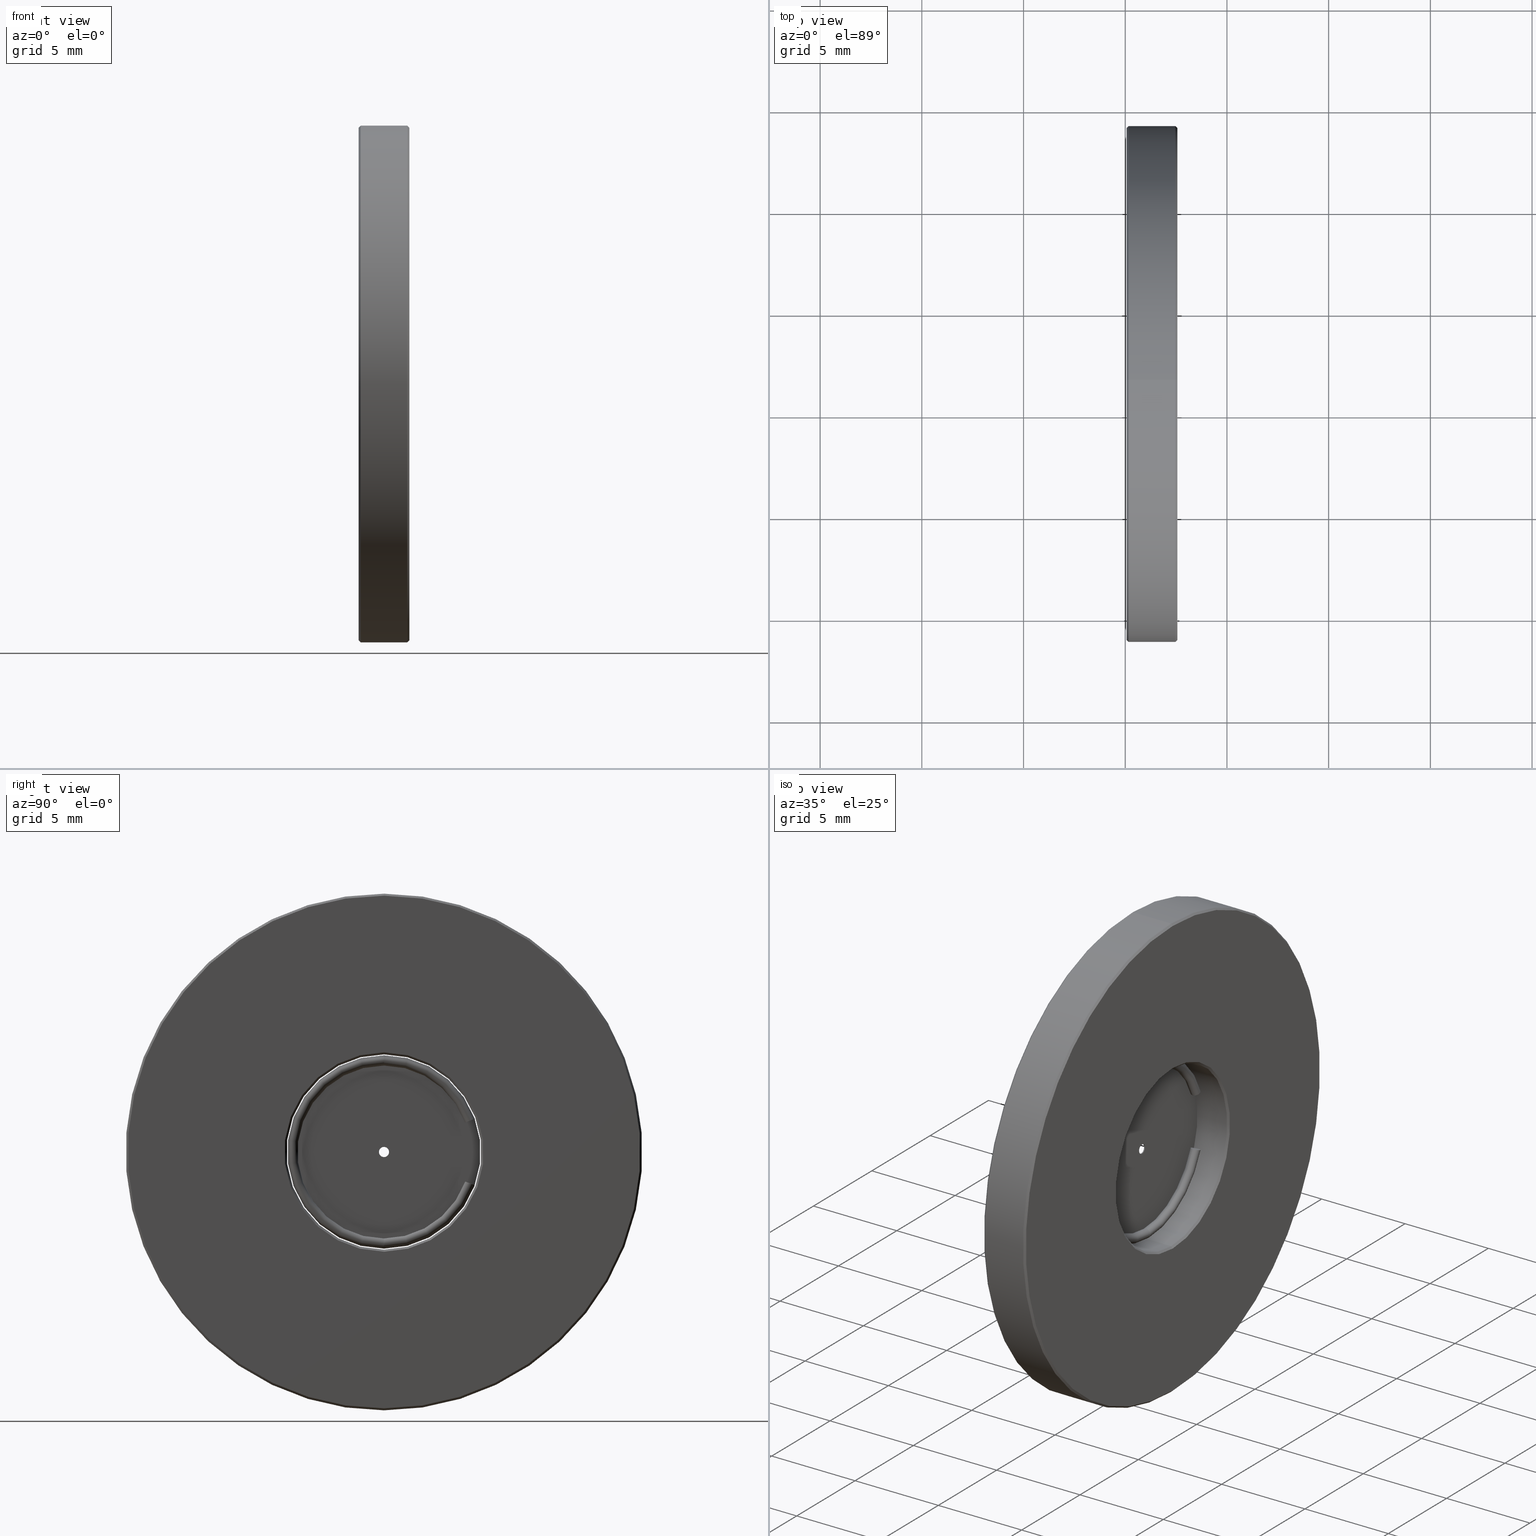
[diagram: canonical four-view strip — front | top / right | iso, engineering-drawing reading convention]
A machine part, canonical four-view strip (front | top / right | iso — engineering-drawing reading convention). The complete STEP part file that produces these views, byte-faithful:
ISO-10303-21;
HEADER;
FILE_DESCRIPTION (( 'STEP AP203' ),
    '1' );
FILE_NAME ('1.5.3.35_ZXO-1.0-500_�������500um��ֱ��25.4��1.0Ӣ�磩.STEP',
    '2021-07-27T01:09:41',
    ( 'China' ),
    ( 'Home' ),
    'SwSTEP 2.0',
    'SolidWorks 2018',
    '' );
FILE_SCHEMA (( 'CONFIG_CONTROL_DESIGN' ));
ENDSEC;

DATA;
#1 = VECTOR ( 'NONE', #816, 1000.000000000000000 ) ;
#2 = DIRECTION ( 'NONE',  ( -1.000000000000000000, -0.0000000000000000000, -0.0000000000000000000 ) ) ;
#3 = VERTEX_POINT ( 'NONE', #703 ) ;
#4 = ORIENTED_EDGE ( 'NONE', *, *, #696, .F. ) ;
#5 = DIRECTION ( 'NONE',  ( 0.0000000000000000000, 0.0000000000000000000, -1.000000000000000000 ) ) ;
#6 = CARTESIAN_POINT ( 'NONE',  ( -4.034863851253229328, 5.430452479329598070, 23.94641439060304933 ) ) ;
#7 = CARTESIAN_POINT ( 'NONE',  ( -2.434863851253203038, 1.436758841085141070, 20.50000000000000000 ) ) ;
#8 = EDGE_CURVE ( 'NONE', #546, #64, #542, .T. ) ;
#9 = DIRECTION ( 'NONE',  ( 0.0000000000000000000, 0.0000000000000000000, -1.000000000000000000 ) ) ;
#10 = PERSON ( 'δָ��', 'δָ��', 'δָ��', ('δָ��'), ('δָ��'), ('δָ��') ) ;
#11 = DIRECTION ( 'NONE',  ( -1.000000000000000000, -0.0000000000000000000, -0.0000000000000000000 ) ) ;
#12 = TOROIDAL_SURFACE ( 'NONE', #258, 4.500000000000001776, 0.2499999999999994726 ) ;
#13 = CYLINDRICAL_SURFACE ( 'NONE', #270, 0.2500000000000002220 ) ;
#14 = DIRECTION ( 'NONE',  ( 2.921639538487253472E-15, 1.000000000000000000, 0.0000000000000000000 ) ) ;
#15 = AXIS2_PLACEMENT_3D ( 'NONE', #592, #320, #5 ) ;
#16 = DIRECTION ( 'NONE',  ( 0.0000000000000000000, 0.0000000000000000000, -1.000000000000000000 ) ) ;
#17 = DIRECTION ( 'NONE',  ( -2.997602166400238009E-15, -1.000000000000000000, 6.581526990068181500E-11 ) ) ;
#18 = AXIS2_PLACEMENT_3D ( 'NONE', #730, #538, #664 ) ;
#19 = DIRECTION ( 'NONE',  ( 0.0000000000000000000, 0.0000000000000000000, 1.000000000000000000 ) ) ;
#20 = CC_DESIGN_APPROVAL ( #438, ( #300 ) ) ;
#21 = DIRECTION ( 'NONE',  ( 0.0000000000000000000, 0.0000000000000000000, -1.000000000000000000 ) ) ;
#22 = DIRECTION ( 'NONE',  ( 1.000000000000000000, 0.0000000000000000000, 0.0000000000000000000 ) ) ;
#23 = LINE ( 'NONE', #71, #489 ) ;
#24 = EDGE_LOOP ( 'NONE', ( #197, #659, #762, #625 ) ) ;
#25 = CARTESIAN_POINT ( 'NONE',  ( -4.034863851253245315, 1.436758841381310825, 29.89999999999998437 ) ) ;
#26 = ORIENTED_EDGE ( 'NONE', *, *, #39, .T. ) ;
#27 = CARTESIAN_POINT ( 'NONE',  ( -4.934863851253203926, 1.436758841085141070, 29.19999999999999929 ) ) ;
#28 = ORIENTED_EDGE ( 'NONE', *, *, #112, .T. ) ;
#29 = AXIS2_PLACEMENT_3D ( 'NONE', #835, #515, #504 ) ;
#30 = DIRECTION ( 'NONE',  ( -1.332267629506340790E-15, -6.581527172670668233E-11, -1.000000000000000000 ) ) ;
#31 =( NAMED_UNIT ( * ) PLANE_ANGLE_UNIT ( ) SI_UNIT ( $, .RADIAN. ) );
#32 = CARTESIAN_POINT ( 'NONE',  ( -4.034863851253245315, 1.436758841381310825, 29.89999999999998437 ) ) ;
#33 = DIRECTION ( 'NONE',  ( 0.0000000000000000000, 0.0000000000000000000, -1.000000000000000000 ) ) ;
#34 = LOCAL_TIME ( 9, 9, 41.00000000000000000, #296 ) ;
#35 = DIRECTION ( 'NONE',  ( 1.000000000000000000, 0.0000000000000000000, 0.0000000000000000000 ) ) ;
#36 = TOROIDAL_SURFACE ( 'NONE', #327, 4.500000000000001776, 0.2499999999999994726 ) ;
#37 = DIRECTION ( 'NONE',  ( -1.054662389422715826E-17, 0.3420201432638126371, -0.9396926208084220855 ) ) ;
#38 = VERTEX_POINT ( 'NONE', #180 ) ;
#39 = EDGE_CURVE ( 'NONE', #520, #637, #290, .T. ) ;
#40 = DIRECTION ( 'NONE',  ( -1.000000000000000000, 0.0000000000000000000, 0.0000000000000000000 ) ) ;
#41 = DIRECTION ( 'NONE',  ( 1.000000000000000000, 0.0000000000000000000, 0.0000000000000000000 ) ) ;
#42 = AXIS2_PLACEMENT_3D ( 'NONE', #701, #313, #67 ) ;
#43 = FACE_OUTER_BOUND ( 'NONE', #355, .T. ) ;
#44 = DESIGN_CONTEXT ( 'detailed design', #215, 'design' ) ;
#45 = ORIENTED_EDGE ( 'NONE', *, *, #817, .T. ) ;
#46 = PLANE ( 'NONE',  #405 ) ;
#47 = CARTESIAN_POINT ( 'NONE',  ( -18.51131405003491537, 1.436758841085141070, 20.60000000000000142 ) ) ;
#48 = CALENDAR_DATE ( 2021, 27, 7 ) ;
#49 = DIRECTION ( 'NONE',  ( 1.000000000000000000, 0.0000000000000000000, 0.0000000000000000000 ) ) ;
#50 = EDGE_CURVE ( 'NONE', #637, #97, #23, .T. ) ;
#51 = ADVANCED_FACE ( 'NONE', ( #319, #455 ), #136, .F. ) ;
#52 = VECTOR ( 'NONE', #690, 1000.000000000000114 ) ;
#53 = AXIS2_PLACEMENT_3D ( 'NONE', #589, #191, #389 ) ;
#54 = VERTEX_POINT ( 'NONE', #128 ) ;
#55 = CARTESIAN_POINT ( 'NONE',  ( -4.934863851253203926, 1.436758841085141514, 21.59999999999999787 ) ) ;
#56 = ORIENTED_EDGE ( 'NONE', *, *, #470, .T. ) ;
#57 = DIRECTION ( 'NONE',  ( 0.0000000000000000000, 0.0000000000000000000, -1.000000000000000000 ) ) ;
#58 = CARTESIAN_POINT ( 'NONE',  ( -4.934863851253203926, 1.436758841085141070, 25.39999999999999858 ) ) ;
#59 = AXIS2_PLACEMENT_3D ( 'NONE', #401, #465, #89 ) ;
#60 = CIRCLE ( 'NONE', #238, 0.2500000000000000000 ) ;
#61 = CC_DESIGN_APPROVAL ( #622, ( #774 ) ) ;
#62 = VERTEX_POINT ( 'NONE', #77 ) ;
#63 = ADVANCED_FACE ( 'NONE', ( #124 ), #204, .F. ) ;
#64 = VERTEX_POINT ( 'NONE', #328 ) ;
#65 = ORIENTED_EDGE ( 'NONE', *, *, #198, .F. ) ;
#66 = EDGE_CURVE ( 'NONE', #815, #375, #813, .T. ) ;
#67 = DIRECTION ( 'NONE',  ( 3.469446951953611033E-15, -0.9396926207634005435, 0.3420201433875083574 ) ) ;
#68 = AXIS2_PLACEMENT_3D ( 'NONE', #395, #661, #593 ) ;
#69 = DIRECTION ( 'NONE',  ( 3.469446951953614189E-15, -0.9396926208084209753, -0.3420201432638159122 ) ) ;
#70 = PLANE ( 'NONE',  #222 ) ;
#71 = CARTESIAN_POINT ( 'NONE',  ( -4.834863851253204281, 1.436758841085141070, 12.69999999999999929 ) ) ;
#72 = VECTOR ( 'NONE', #801, 1000.000000000000000 ) ;
#73 = CIRCLE ( 'NONE', #509, 0.2500000000000002220 ) ;
#74 = DIRECTION ( 'NONE',  ( 1.000000000000000000, 0.0000000000000000000, 0.0000000000000000000 ) ) ;
#75 = ORIENTED_EDGE ( 'NONE', *, *, #8, .T. ) ;
#76 = EDGE_LOOP ( 'NONE', ( #773, #397, #56, #436 ) ) ;
#77 = CARTESIAN_POINT ( 'NONE',  ( -4.034863851253225775, 5.900298789925161103, 27.02459568050305094 ) ) ;
#78 = DIRECTION ( 'NONE',  ( 3.599659071901011181E-15, -0.9396926208084229737, -0.3420201432638104166 ) ) ;
#79 = EDGE_CURVE ( 'NONE', #322, #257, #228, .T. ) ;
#80 = CARTESIAN_POINT ( 'NONE',  ( -4.934863851253203926, 1.436758841085141070, 25.39999999999999858 ) ) ;
#81 = LOCAL_TIME ( 9, 9, 41.00000000000000000, #93 ) ;
#82 = LINE ( 'NONE', #523, #425 ) ;
#83 = CARTESIAN_POINT ( 'NONE',  ( -4.284863851253205347, 1.436758841085140181, 25.39999999999999858 ) ) ;
#84 = CIRCLE ( 'NONE', #578, 3.700000000000001954 ) ;
#85 = OPEN_SHELL ( 'NONE', ( #830, #377, #302, #185, #691, #506, #826, #758 ) ) ;
#86 = DIRECTION ( 'NONE',  ( -1.000000000000000000, -0.0000000000000000000, -0.0000000000000000000 ) ) ;
#87 = VERTEX_POINT ( 'NONE', #261 ) ;
#88 = CARTESIAN_POINT ( 'NONE',  ( -4.034863851253239986, 1.436758841085141514, 25.39999999999998437 ) ) ;
#89 = DIRECTION ( 'NONE',  ( 2.921639538487253472E-15, 1.000000000000000000, 0.0000000000000000000 ) ) ;
#90 = DIRECTION ( 'NONE',  ( -1.000000000000000000, 0.0000000000000000000, -0.0000000000000000000 ) ) ;
#91 = DIRECTION ( 'NONE',  ( 1.000000000000000000, -2.997602166487921476E-15, -1.332267629309052594E-15 ) ) ;
#92 = LOCAL_TIME ( 9, 9, 41.00000000000000000, #712 ) ;
#93 = COORDINATED_UNIVERSAL_TIME_OFFSET ( 8, 0, .AHEAD. ) ;
#94 = APPLICATION_PROTOCOL_DEFINITION ( 'international standard', 'config_control_design', 1994, #602 ) ;
#95 = LINE ( 'NONE', #422, #715 ) ;
#96 = EDGE_LOOP ( 'NONE', ( #771, #45, #780, #184 ) ) ;
#97 = VERTEX_POINT ( 'NONE', #195 ) ;
#98 = EDGE_CURVE ( 'NONE', #132, #3, #562, .T. ) ;
#99 = APPROVAL_ROLE ( '' ) ;
#100 = EDGE_LOOP ( 'NONE', ( #503, #280, #186, #588 ) ) ;
#101 = AXIS2_PLACEMENT_3D ( 'NONE', #145, #599, #342 ) ;
#102 = CARTESIAN_POINT ( 'NONE',  ( -4.034863851253246203, 1.436758840772518919, 20.64999999999998437 ) ) ;
#103 = DIRECTION ( 'NONE',  ( -1.000000000000000000, 0.0000000000000000000, -0.0000000000000000000 ) ) ;
#104 = UNCERTAINTY_MEASURE_WITH_UNIT (LENGTH_MEASURE( 1.000000000000000082E-05 ), #527, 'distance_accuracy_value', 'NONE');
#105 = AXIS2_PLACEMENT_3D ( 'NONE', #32, #273, #406 ) ;
#106 = CARTESIAN_POINT ( 'NONE',  ( -4.334863851253203393, 1.436758841085141070, 25.39999999999999858 ) ) ;
#107 = LINE ( 'NONE', #343, #702 ) ;
#108 = ORIENTED_EDGE ( 'NONE', *, *, #413, .T. ) ;
#109 = VERTEX_POINT ( 'NONE', #516 ) ;
#110 = AXIS2_PLACEMENT_3D ( 'NONE', #88, #275, #735 ) ;
#111 = CARTESIAN_POINT ( 'NONE',  ( -4.034863851253261302, 5.665375634520459336, 23.86090935475617059 ) ) ;
#112 = EDGE_CURVE ( 'NONE', #400, #142, #820, .T. ) ;
#113 = FACE_OUTER_BOUND ( 'NONE', #446, .T. ) ;
#114 = DIRECTION ( 'NONE',  ( 3.061276722312011406E-15, 1.000000000000000000, 0.0000000000000000000 ) ) ;
#115 = ORIENTED_EDGE ( 'NONE', *, *, #630, .T. ) ;
#116 = ORIENTED_EDGE ( 'NONE', *, *, #721, .F. ) ;
#117 = ORIENTED_EDGE ( 'NONE', *, *, #421, .F. ) ;
#118 = AXIS2_PLACEMENT_3D ( 'NONE', #431, #119, #621 ) ;
#119 = DIRECTION ( 'NONE',  ( -2.997602166400238009E-15, -1.000000000000000000, 6.581526990068181500E-11 ) ) ;
#120 = ADVANCED_FACE ( 'NONE', ( #43 ), #362, .T. ) ;
#121 = EDGE_CURVE ( 'NONE', #597, #534, #396, .T. ) ;
#122 = CIRCLE ( 'NONE', #464, 4.250000000000001776 ) ;
#123 = ADVANCED_FACE ( 'NONE', ( #385 ), #616, .T. ) ;
#124 = FACE_OUTER_BOUND ( 'NONE', #364, .T. ) ;
#125 = ORIENTED_EDGE ( 'NONE', *, *, #555, .F. ) ;
#126 = SHELL_BASED_SURFACE_MODEL ( 'NONE', ( #564, #785, #85 ) );
#127 = DIRECTION ( 'NONE',  ( 0.0000000000000000000, 0.0000000000000000000, 1.000000000000000000 ) ) ;
#128 = CARTESIAN_POINT ( 'NONE',  ( -4.284863851253205347, 1.436758841085140181, 30.14999999999999858 ) ) ;
#129 = CARTESIAN_POINT ( 'NONE',  ( -4.034863851253237321, 1.436758841364856876, 29.64999999999998437 ) ) ;
#130 = AXIS2_PLACEMENT_3D ( 'NONE', #447, #454, #587 ) ;
#131 = CIRCLE ( 'NONE', #29, 12.69999999999999929 ) ;
#132 = VERTEX_POINT ( 'NONE', #513 ) ;
#133 = VERTEX_POINT ( 'NONE', #384 ) ;
#134 = EDGE_CURVE ( 'NONE', #62, #167, #60, .T. ) ;
#135 = CARTESIAN_POINT ( 'NONE',  ( -4.334863851253203393, 1.436758841085141070, 25.39999999999999858 ) ) ;
#136 = PLANE ( 'NONE',  #583 ) ;
#137 = DIRECTION ( 'NONE',  ( 0.7071067811865414665, 0.0000000000000000000, -0.7071067811865536790 ) ) ;
#138 = LOCAL_TIME ( 9, 9, 41.00000000000000000, #665 ) ;
#139 = FACE_OUTER_BOUND ( 'NONE', #366, .T. ) ;
#140 = ORIENTED_EDGE ( 'NONE', *, *, #721, .T. ) ;
#141 = CARTESIAN_POINT ( 'NONE',  ( -4.284863851253205347, 1.436758841085140181, 25.14999999999999858 ) ) ;
#142 = VERTEX_POINT ( 'NONE', #641 ) ;
#143 = PRODUCT_RELATED_PRODUCT_CATEGORY ( 'detail', '', ( #526 ) ) ;
#144 = CARTESIAN_POINT ( 'NONE',  ( -2.434863851253203482, 1.436758841085141070, 25.39999999999999858 ) ) ;
#145 = CARTESIAN_POINT ( 'NONE',  ( -4.334863851253204281, 1.436758841085140181, 25.39999999999999858 ) ) ;
#146 = APPROVAL_PERSON_ORGANIZATION ( #370, #586, #212 ) ;
#147 = CARTESIAN_POINT ( 'NONE',  ( -4.334863851253203393, 1.436758841085141070, 21.69999999999999574 ) ) ;
#148 = ORIENTED_EDGE ( 'NONE', *, *, #289, .F. ) ;
#149 = DIRECTION ( 'NONE',  ( 1.000000000000000000, -2.997602166487921476E-15, -1.332267629309052594E-15 ) ) ;
#150 = ORIENTED_EDGE ( 'NONE', *, *, #775, .F. ) ;
#151 = CARTESIAN_POINT ( 'NONE',  ( -4.334863851253204281, 1.436758841085140181, 25.39999999999999858 ) ) ;
#152 = ORIENTED_EDGE ( 'NONE', *, *, #736, .F. ) ;
#153 = DIRECTION ( 'NONE',  ( -0.7071067811865414665, 8.659560562355008046E-17, -0.7071067811865536790 ) ) ;
#154 = EDGE_CURVE ( 'NONE', #688, #310, #748, .T. ) ;
#155 = DIRECTION ( 'NONE',  ( 3.469446951953614189E-15, -0.9396926208084209753, -0.3420201432638159122 ) ) ;
#156 = DIRECTION ( 'NONE',  ( 1.000000000000000000, 0.0000000000000000000, 0.0000000000000000000 ) ) ;
#157 = PERSON_AND_ORGANIZATION ( #10, #558 ) ;
#158 = CONICAL_SURFACE ( 'NONE', #336, 4.899999999999997691, 0.7853981633974439491 ) ;
#159 = CIRCLE ( 'NONE', #650, 3.800000000000001155 ) ;
#160 = ORIENTED_EDGE ( 'NONE', *, *, #368, .F. ) ;
#161 = EDGE_CURVE ( 'NONE', #688, #618, #716, .T. ) ;
#162 = DIRECTION ( 'NONE',  ( 0.0000000000000000000, 0.0000000000000000000, -1.000000000000000000 ) ) ;
#163 = CARTESIAN_POINT ( 'NONE',  ( -2.534863851253199574, 1.436758841085141070, 38.09999999999999432 ) ) ;
#164 = AXIS2_PLACEMENT_3D ( 'NONE', #708, #577, #253 ) ;
#165 = FACE_OUTER_BOUND ( 'NONE', #100, .T. ) ;
#166 = ORIENTED_EDGE ( 'NONE', *, *, #232, .F. ) ;
#167 = VERTEX_POINT ( 'NONE', #474 ) ;
#168 = AXIS2_PLACEMENT_3D ( 'NONE', #797, #200, #21 ) ;
#169 = ORIENTED_EDGE ( 'NONE', *, *, #775, .T. ) ;
#170 = ADVANCED_FACE ( 'NONE', ( #725, #435 ), #207, .F. ) ;
#171 = AXIS2_PLACEMENT_3D ( 'NONE', #458, #268, #78 ) ;
#172 = CONICAL_SURFACE ( 'NONE', #68, 4.899999999999997691, 0.7853981633974439491 ) ;
#173 = LINE ( 'NONE', #639, #624 ) ;
#174 = TOROIDAL_SURFACE ( 'NONE', #692, 4.500000000000001776, 0.2499999999999994726 ) ;
#175 = VERTEX_POINT ( 'NONE', #269 ) ;
#176 = ORIENTED_EDGE ( 'NONE', *, *, #470, .F. ) ;
#177 = ADVANCED_FACE ( 'NONE', ( #550 ), #338, .F. ) ;
#178 = DIRECTION ( 'NONE',  ( 0.7071067811865414665, 8.659560562355009279E-17, 0.7071067811865536790 ) ) ;
#179 = CARTESIAN_POINT ( 'NONE',  ( -4.284863851253205347, 1.436758841085140181, 25.39999999999999858 ) ) ;
#180 = CARTESIAN_POINT ( 'NONE',  ( -2.534863851253202682, 1.436758841085141736, 30.19999999999999929 ) ) ;
#181 = CIRCLE ( 'NONE', #101, 0.2500000000000002220 ) ;
#182 = ORIENTED_EDGE ( 'NONE', *, *, #494, .T. ) ;
#183 = DIRECTION ( 'NONE',  ( 1.000000000000000000, -0.0000000000000000000, -0.0000000000000000000 ) ) ;
#184 = ORIENTED_EDGE ( 'NONE', *, *, #66, .F. ) ;
#185 = ADVANCED_FACE ( 'NONE', ( #220 ), #36, .T. ) ;
#186 = ORIENTED_EDGE ( 'NONE', *, *, #161, .T. ) ;
#187 = ORIENTED_EDGE ( 'NONE', *, *, #601, .T. ) ;
#188 = EDGE_CURVE ( 'NONE', #142, #400, #683, .T. ) ;
#189 = CARTESIAN_POINT ( 'NONE',  ( -2.434863851253203482, 1.436758841085141070, 25.39999999999999858 ) ) ;
#190 = AXIS2_PLACEMENT_3D ( 'NONE', #535, #467, #22 ) ;
#191 = DIRECTION ( 'NONE',  ( 1.000000000000000000, -2.997602166487921476E-15, -1.332267629309052594E-15 ) ) ;
#192 = DIRECTION ( 'NONE',  ( 2.305737067885818465E-15, -0.3420201433875043051, -0.9396926207634020978 ) ) ;
#193 = AXIS2_PLACEMENT_3D ( 'NONE', #718, #777, #390 ) ;
#194 = CONICAL_SURFACE ( 'NONE', #311, 3.800000000000001155, 0.7853981633974439491 ) ;
#195 = CARTESIAN_POINT ( 'NONE',  ( -4.834863851253204281, 1.436758841085141070, 12.69999999999999929 ) ) ;
#196 = LINE ( 'NONE', #213, #266 ) ;
#197 = ORIENTED_EDGE ( 'NONE', *, *, #242, .F. ) ;
#198 = EDGE_CURVE ( 'NONE', #142, #814, #196, .T. ) ;
#199 = DIRECTION ( 'NONE',  ( -1.000000000000000000, -0.0000000000000000000, -0.0000000000000000000 ) ) ;
#200 = DIRECTION ( 'NONE',  ( -1.000000000000000000, 0.0000000000000000000, -0.0000000000000000000 ) ) ;
#201 = DIRECTION ( 'NONE',  ( 0.0000000000000000000, 0.0000000000000000000, -1.000000000000000000 ) ) ;
#202 = DIRECTION ( 'NONE',  ( 1.000000000000000000, -2.997602166487921476E-15, -1.332267629309052594E-15 ) ) ;
#203 = MECHANICAL_CONTEXT ( 'NONE', #602, 'mechanical' ) ;
#204 = CYLINDRICAL_SURFACE ( 'NONE', #225, 3.700000000000001954 ) ;
#205 = AXIS2_PLACEMENT_3D ( 'NONE', #671, #277, #33 ) ;
#206 = EDGE_LOOP ( 'NONE', ( #176, #824, #553, #223 ) ) ;
#207 = PLANE ( 'NONE',  #18 ) ;
#208 = ORIENTED_EDGE ( 'NONE', *, *, #787, .F. ) ;
#209 = CARTESIAN_POINT ( 'NONE',  ( -4.034863851253261302, 5.665375634723053722, 26.93909064468709857 ) ) ;
#210 = DIRECTION ( 'NONE',  ( 1.000000000000000000, 0.0000000000000000000, 0.0000000000000000000 ) ) ;
#211 = AXIS2_PLACEMENT_3D ( 'NONE', #529, #17, #600 ) ;
#212 = APPROVAL_ROLE ( '' ) ;
#213 = CARTESIAN_POINT ( 'NONE',  ( -2.434863851253203482, 1.436758841085142402, 12.79999999999999716 ) ) ;
#214 = DATE_AND_TIME ( #380, #92 ) ;
#215 = APPLICATION_CONTEXT ( 'configuration controlled 3d designs of mechanical parts and assemblies' ) ;
#216 = CIRCLE ( 'NONE', #445, 0.2500000000000000000 ) ;
#217 = DIRECTION ( 'NONE',  ( 1.000000000000000000, -0.0000000000000000000, -0.0000000000000000000 ) ) ;
#218 = CYLINDRICAL_SURFACE ( 'NONE', #569, 12.69999999999999574 ) ;
#219 = EDGE_CURVE ( 'NONE', #618, #688, #530, .T. ) ;
#220 = FACE_OUTER_BOUND ( 'NONE', #24, .T. ) ;
#221 = APPROVAL_ROLE ( '' ) ;
#222 = AXIS2_PLACEMENT_3D ( 'NONE', #638, #568, #127 ) ;
#223 = ORIENTED_EDGE ( 'NONE', *, *, #494, .F. ) ;
#224 = CARTESIAN_POINT ( 'NONE',  ( -4.334863851253204281, 1.436758841085140181, 25.14999999999999858 ) ) ;
#225 = AXIS2_PLACEMENT_3D ( 'NONE', #449, #581, #524 ) ;
#226 = COORDINATED_UNIVERSAL_TIME_OFFSET ( 8, 0, .AHEAD. ) ;
#227 = CIRCLE ( 'NONE', #713, 4.899999999999997691 ) ;
#228 = LINE ( 'NONE', #7, #643 ) ;
#229 = DIRECTION ( 'NONE',  ( 0.0000000000000000000, 0.0000000000000000000, -1.000000000000000000 ) ) ;
#230 = ORIENTED_EDGE ( 'NONE', *, *, #410, .F. ) ;
#231 = DIRECTION ( 'NONE',  ( 1.000000000000000000, -2.997602166487921476E-15, -1.332267629309052594E-15 ) ) ;
#232 = EDGE_CURVE ( 'NONE', #133, #374, #372, .T. ) ;
#233 = ADVANCED_FACE ( 'NONE', ( #695 ), #349, .F. ) ;
#234 = CARTESIAN_POINT ( 'NONE',  ( -4.334863851253203393, 1.436758841085141736, 30.19999999999999929 ) ) ;
#235 = ORIENTED_EDGE ( 'NONE', *, *, #745, .T. ) ;
#236 = DIRECTION ( 'NONE',  ( 1.000000000000000000, -0.0000000000000000000, -0.0000000000000000000 ) ) ;
#237 = ORIENTED_EDGE ( 'NONE', *, *, #98, .T. ) ;
#238 = AXIS2_PLACEMENT_3D ( 'NONE', #521, #440, #69 ) ;
#239 = ORIENTED_EDGE ( 'NONE', *, *, #477, .T. ) ;
#240 = CARTESIAN_POINT ( 'NONE',  ( -4.834863851253204281, 1.436758841085141070, 25.39999999999999858 ) ) ;
#241 = CARTESIAN_POINT ( 'NONE',  ( -4.334863851253203393, 1.436758841085141070, 20.60000000000000142 ) ) ;
#242 = EDGE_CURVE ( 'NONE', #62, #688, #571, .T. ) ;
#243 = CIRCLE ( 'NONE', #821, 3.700000000000001954 ) ;
#244 = CIRCLE ( 'NONE', #424, 4.799999999999998934 ) ;
#245 = ORIENTED_EDGE ( 'NONE', *, *, #39, .F. ) ;
#246 = DIRECTION ( 'NONE',  ( -1.000000000000000000, -0.0000000000000000000, -0.0000000000000000000 ) ) ;
#247 = DIRECTION ( 'NONE',  ( 1.000000000000000000, 0.0000000000000000000, 0.0000000000000000000 ) ) ;
#248 = DIRECTION ( 'NONE',  ( 0.0000000000000000000, 0.0000000000000000000, -1.000000000000000000 ) ) ;
#249 = DIRECTION ( 'NONE',  ( 0.0000000000000000000, 0.0000000000000000000, -1.000000000000000000 ) ) ;
#250 = APPROVAL_PERSON_ORGANIZATION ( #157, #622, #99 ) ;
#251 = CC_DESIGN_DATE_AND_TIME_ASSIGNMENT ( #767, #335, ( #300 ) ) ;
#252 = CYLINDRICAL_SURFACE ( 'NONE', #348, 12.69999999999999574 ) ;
#253 = DIRECTION ( 'NONE',  ( 0.0000000000000000000, 0.0000000000000000000, -1.000000000000000000 ) ) ;
#254 = ORIENTED_EDGE ( 'NONE', *, *, #450, .T. ) ;
#255 = ORIENTED_EDGE ( 'NONE', *, *, #289, .T. ) ;
#256 = CARTESIAN_POINT ( 'NONE',  ( -4.934863851253203926, 1.436758841085141070, 25.39999999999999858 ) ) ;
#257 = VERTEX_POINT ( 'NONE', #334 ) ;
#258 = AXIS2_PLACEMENT_3D ( 'NONE', #346, #149, #808 ) ;
#259 = DIRECTION ( 'NONE',  ( -1.000000000000000000, 0.0000000000000000000, -0.0000000000000000000 ) ) ;
#260 = DIRECTION ( 'NONE',  ( 1.000000000000000000, 0.0000000000000000000, 0.0000000000000000000 ) ) ;
#261 = CARTESIAN_POINT ( 'NONE',  ( -4.284863851253205347, 1.436758841085140181, 25.64999999999999858 ) ) ;
#262 = PERSON_AND_ORGANIZATION ( #10, #558 ) ;
#263 = CARTESIAN_POINT ( 'NONE',  ( -4.334863851253204281, 1.436758841085140181, 25.39999999999999858 ) ) ;
#264 = AXIS2_PLACEMENT_3D ( 'NONE', #179, #318, #770 ) ;
#265 = FACE_OUTER_BOUND ( 'NONE', #706, .T. ) ;
#266 = VECTOR ( 'NONE', #153, 1000.000000000000000 ) ;
#267 = ORIENTED_EDGE ( 'NONE', *, *, #188, .F. ) ;
#268 = DIRECTION ( 'NONE',  ( -1.054662389421852547E-17, 0.3420201432638104166, -0.9396926208084229737 ) ) ;
#269 = CARTESIAN_POINT ( 'NONE',  ( -4.334863851253204281, 1.436758841085140181, 25.64999999999999858 ) ) ;
#270 = AXIS2_PLACEMENT_3D ( 'NONE', #83, #103, #751 ) ;
#271 = PERSON_AND_ORGANIZATION_ROLE ( 'creator' ) ;
#272 = CC_DESIGN_PERSON_AND_ORGANIZATION_ASSIGNMENT ( #393, #727, ( #774 ) ) ;
#273 = DIRECTION ( 'NONE',  ( 2.997602166400237614E-15, 1.000000000000000000, -6.581539236536173561E-11 ) ) ;
#274 = CARTESIAN_POINT ( 'NONE',  ( -2.434863851253203038, 1.436758841085141736, 30.29999999999999716 ) ) ;
#275 = DIRECTION ( 'NONE',  ( 1.000000000000000000, -2.997602166487921476E-15, -1.332267629309052594E-15 ) ) ;
#276 = EDGE_CURVE ( 'NONE', #534, #38, #107, .T. ) ;
#277 = DIRECTION ( 'NONE',  ( -1.000000000000000000, -0.0000000000000000000, -0.0000000000000000000 ) ) ;
#278 = ORIENTED_EDGE ( 'NONE', *, *, #50, .T. ) ;
#279 = DIRECTION ( 'NONE',  ( 0.0000000000000000000, 6.581540867855999654E-11, 1.000000000000000000 ) ) ;
#280 = ORIENTED_EDGE ( 'NONE', *, *, #242, .T. ) ;
#281 = MANIFOLD_SURFACE_SHAPE_REPRESENTATION ( '1.5.3.35_ZXO-1.0-500_�������500um��ֱ��25.4��1.0Ӣ�磩', ( #126, #190 ), #391 ) ;
#282 = PERSON_AND_ORGANIZATION_ROLE ( 'creator' ) ;
#283 = ORIENTED_EDGE ( 'NONE', *, *, #457, .F. ) ;
#284 = DIRECTION ( 'NONE',  ( 1.000000000000000000, 0.0000000000000000000, 0.0000000000000000000 ) ) ;
#285 = AXIS2_PLACEMENT_3D ( 'NONE', #398, #202, #733 ) ;
#286 = CARTESIAN_POINT ( 'NONE',  ( -4.934863851253203926, 1.436758841085141070, 25.39999999999999858 ) ) ;
#287 = CARTESIAN_POINT ( 'NONE',  ( -2.534863851253202682, 1.436758841085141070, 20.60000000000000142 ) ) ;
#288 = FACE_OUTER_BOUND ( 'NONE', #753, .T. ) ;
#289 = EDGE_CURVE ( 'NONE', #627, #310, #508, .T. ) ;
#290 = CIRCLE ( 'NONE', #549, 12.59999999999999787 ) ;
#291 = ORIENTED_EDGE ( 'NONE', *, *, #276, .F. ) ;
#292 = VERTEX_POINT ( 'NONE', #147 ) ;
#293 = CARTESIAN_POINT ( 'NONE',  ( -4.034863851253239986, 1.436758841085141514, 25.39999999999998437 ) ) ;
#294 = AXIS2_PLACEMENT_3D ( 'NONE', #295, #297, #114 ) ;
#295 = CARTESIAN_POINT ( 'NONE',  ( -4.034863851253239986, 1.436758841085141514, 25.39999999999998437 ) ) ;
#296 = COORDINATED_UNIVERSAL_TIME_OFFSET ( 8, 0, .AHEAD. ) ;
#297 = DIRECTION ( 'NONE',  ( 1.000000000000000000, -2.997602166487921476E-15, -1.332267629309052594E-15 ) ) ;
#298 = ORIENTED_EDGE ( 'NONE', *, *, #505, .F. ) ;
#299 = ORIENTED_EDGE ( 'NONE', *, *, #677, .T. ) ;
#300 = SECURITY_CLASSIFICATION ( '', '', #676 ) ;
#301 = ORIENTED_EDGE ( 'NONE', *, *, #357, .F. ) ;
#302 = ADVANCED_FACE ( 'NONE', ( #165 ), #353, .T. ) ;
#303 = EDGE_CURVE ( 'NONE', #322, #38, #244, .T. ) ;
#304 = DIRECTION ( 'NONE',  ( -1.000000000000000000, -0.0000000000000000000, -0.0000000000000000000 ) ) ;
#305 = ADVANCED_FACE ( 'NONE', ( #769 ), #13, .F. ) ;
#306 = TOROIDAL_SURFACE ( 'NONE', #749, 4.500000000000001776, 0.2499999999999994726 ) ;
#307 = CIRCLE ( 'NONE', #666, 3.800000000000001155 ) ;
#308 = VECTOR ( 'NONE', #412, 1000.000000000000114 ) ;
#309 = CARTESIAN_POINT ( 'NONE',  ( -4.934863851253203926, 1.436758841085141070, 25.39999999999999858 ) ) ;
#310 = VERTEX_POINT ( 'NONE', #102 ) ;
#311 = AXIS2_PLACEMENT_3D ( 'NONE', #309, #434, #699 ) ;
#312 = DIRECTION ( 'NONE',  ( -1.000000000000000000, -0.0000000000000000000, -0.0000000000000000000 ) ) ;
#313 = DIRECTION ( 'NONE',  ( 2.305737067885818465E-15, -0.3420201433875043051, -0.9396926207634020978 ) ) ;
#314 = AXIS2_PLACEMENT_3D ( 'NONE', #547, #620, #617 ) ;
#315 = CARTESIAN_POINT ( 'NONE',  ( -4.034863851253261302, 5.665375634520459336, 23.86090935475617059 ) ) ;
#316 = CC_DESIGN_SECURITY_CLASSIFICATION ( #300, ( #774 ) ) ;
#317 = FACE_OUTER_BOUND ( 'NONE', #206, .T. ) ;
#318 = DIRECTION ( 'NONE',  ( 1.000000000000000000, 0.0000000000000000000, 0.0000000000000000000 ) ) ;
#319 = FACE_BOUND ( 'NONE', #511, .T. ) ;
#320 = DIRECTION ( 'NONE',  ( 1.000000000000000000, -0.0000000000000000000, -0.0000000000000000000 ) ) ;
#321 = ORIENTED_EDGE ( 'NONE', *, *, #413, .F. ) ;
#322 = VERTEX_POINT ( 'NONE', #287 ) ;
#323 = EDGE_CURVE ( 'NONE', #54, #109, #668, .T. ) ;
#324 = CC_DESIGN_PERSON_AND_ORGANIZATION_ASSIGNMENT ( #441, #605, ( #526 ) ) ;
#325 = CARTESIAN_POINT ( 'NONE',  ( -2.434863851253203482, 1.436758841085141070, 25.39999999999999858 ) ) ;
#326 = CARTESIAN_POINT ( 'NONE',  ( -2.434863851253203482, 1.436758841085141736, 30.29999999999999716 ) ) ;
#327 = AXIS2_PLACEMENT_3D ( 'NONE', #805, #91, #30 ) ;
#328 = CARTESIAN_POINT ( 'NONE',  ( -4.034863851253229328, 5.900298789711298397, 23.77540431890929895 ) ) ;
#329 = FACE_OUTER_BOUND ( 'NONE', #444, .T. ) ;
#330 = FACE_OUTER_BOUND ( 'NONE', #427, .T. ) ;
#331 = DIRECTION ( 'NONE',  ( 3.469446951953611033E-15, -0.9396926207634005435, 0.3420201433875083574 ) ) ;
#332 = EDGE_LOOP ( 'NONE', ( #681, #399, #117, #116 ) ) ;
#333 = CARTESIAN_POINT ( 'NONE',  ( -4.934863851253203926, 1.436758841085141070, 12.80000000000000071 ) ) ;
#334 = CARTESIAN_POINT ( 'NONE',  ( -2.434863851253203482, 1.436758841085141070, 20.50000000000000000 ) ) ;
#335 = DATE_TIME_ROLE ( 'classification_date' ) ;
#336 = AXIS2_PLACEMENT_3D ( 'NONE', #572, #183, #776 ) ;
#337 = DIRECTION ( 'NONE',  ( 1.000000000000000000, -0.0000000000000000000, -0.0000000000000000000 ) ) ;
#338 = CYLINDRICAL_SURFACE ( 'NONE', #379, 3.700000000000001954 ) ;
#339 = EDGE_LOOP ( 'NONE', ( #267, #743, #125, #598 ) ) ;
#340 = ORIENTED_EDGE ( 'NONE', *, *, #677, .F. ) ;
#341 = ORIENTED_EDGE ( 'NONE', *, *, #682, .F. ) ;
#342 = DIRECTION ( 'NONE',  ( 0.0000000000000000000, 0.0000000000000000000, 1.000000000000000000 ) ) ;
#343 = CARTESIAN_POINT ( 'NONE',  ( -18.51131405003491537, 1.436758841085141736, 30.19999999999999929 ) ) ;
#344 = DATE_TIME_ROLE ( 'creation_date' ) ;
#345 = DIRECTION ( 'NONE',  ( -1.332267629506340790E-15, -6.581527172670668233E-11, -1.000000000000000000 ) ) ;
#346 = CARTESIAN_POINT ( 'NONE',  ( -4.034863851253239986, 1.436758841085141514, 25.39999999999998437 ) ) ;
#347 = LINE ( 'NONE', #47, #394 ) ;
#348 = AXIS2_PLACEMENT_3D ( 'NONE', #189, #246, #567 ) ;
#349 = CYLINDRICAL_SURFACE ( 'NONE', #168, 0.2500000000000002220 ) ;
#350 = VERTEX_POINT ( 'NONE', #163 ) ;
#351 = ORIENTED_EDGE ( 'NONE', *, *, #323, .T. ) ;
#352 = DIRECTION ( 'NONE',  ( 1.000000000000000000, 0.0000000000000000000, 0.0000000000000000000 ) ) ;
#353 = TOROIDAL_SURFACE ( 'NONE', #110, 4.500000000000001776, 0.2499999999999994726 ) ;
#354 = EDGE_LOOP ( 'NONE', ( #792, #782, #426, #150 ) ) ;
#355 = EDGE_LOOP ( 'NONE', ( #456, #645, #278, #574 ) ) ;
#356 = DIRECTION ( 'NONE',  ( 2.764278068315865563E-15, -0.9396926207634013206, 0.3420201433875065256 ) ) ;
#357 = EDGE_CURVE ( 'NONE', #132, #823, #831, .T. ) ;
#358 = CARTESIAN_POINT ( 'NONE',  ( -2.534863851253202682, 1.436758841085141070, 25.39999999999999858 ) ) ;
#359 = VECTOR ( 'NONE', #90, 1000.000000000000000 ) ;
#360 = CIRCLE ( 'NONE', #603, 12.59999999999999787 ) ;
#361 = CARTESIAN_POINT ( 'NONE',  ( -4.934863851253203926, 1.436758841085142402, 38.00000000000000000 ) ) ;
#362 = CONICAL_SURFACE ( 'NONE', #130, 12.69999999999999929, 0.7853981633974569387 ) ;
#363 = AXIS2_PLACEMENT_3D ( 'NONE', #480, #156, #543 ) ;
#364 = EDGE_LOOP ( 'NONE', ( #301, #237, #140, #152 ) ) ;
#365 = ADVANCED_FACE ( 'NONE', ( #519 ), #415, .F. ) ;
#366 = EDGE_LOOP ( 'NONE', ( #510, #644 ) ) ;
#367 = CARTESIAN_POINT ( 'NONE',  ( -2.434863851253203482, 1.436758841085141070, 38.09999999999999432 ) ) ;
#368 = EDGE_CURVE ( 'NONE', #534, #597, #679, .T. ) ;
#369 = CALENDAR_DATE ( 2021, 27, 7 ) ;
#370 = PERSON_AND_ORGANIZATION ( #10, #558 ) ;
#371 = ADVANCED_FACE ( 'NONE', ( #635 ), #656, .T. ) ;
#372 = CIRCLE ( 'NONE', #557, 4.750000000000000888 ) ;
#373 = CARTESIAN_POINT ( 'NONE',  ( -2.434863851253203482, 1.436758841085141070, 25.39999999999999858 ) ) ;
#374 = VERTEX_POINT ( 'NONE', #740 ) ;
#375 = VERTEX_POINT ( 'NONE', #224 ) ;
#376 = DIRECTION ( 'NONE',  ( 0.0000000000000000000, 0.0000000000000000000, 1.000000000000000000 ) ) ;
#377 = ADVANCED_FACE ( 'NONE', ( #596 ), #174, .T. ) ;
#378 = DIRECTION ( 'NONE',  ( 1.000000000000000000, -0.0000000000000000000, -0.0000000000000000000 ) ) ;
#379 = AXIS2_PLACEMENT_3D ( 'NONE', #402, #337, #793 ) ;
#380 = CALENDAR_DATE ( 2021, 27, 7 ) ;
#381 = APPROVAL_DATE_TIME ( #642, #586 ) ;
#382 = CARTESIAN_POINT ( 'NONE',  ( -4.284863851253205347, 1.436758841085140181, 25.64999999999999858 ) ) ;
#383 = CYLINDRICAL_SURFACE ( 'NONE', #686, 4.799999999999998934 ) ;
#384 = CARTESIAN_POINT ( 'NONE',  ( -4.334863851253204281, 1.436758841085140181, 30.14999999999999858 ) ) ;
#385 = FACE_OUTER_BOUND ( 'NONE', #590, .T. ) ;
#386 = EDGE_LOOP ( 'NONE', ( #298, #533, #611, #321 ) ) ;
#387 = ORIENTED_EDGE ( 'NONE', *, *, #518, .T. ) ;
#388 = DIRECTION ( 'NONE',  ( 1.000000000000000000, 0.0000000000000000000, 0.0000000000000000000 ) ) ;
#389 = DIRECTION ( 'NONE',  ( -1.332267629506340790E-15, -6.581527172670668233E-11, -1.000000000000000000 ) ) ;
#390 = DIRECTION ( 'NONE',  ( 0.0000000000000000000, 0.0000000000000000000, -1.000000000000000000 ) ) ;
#391 =( GEOMETRIC_REPRESENTATION_CONTEXT ( 3 ) GLOBAL_UNCERTAINTY_ASSIGNED_CONTEXT ( ( #104 ) ) GLOBAL_UNIT_ASSIGNED_CONTEXT ( ( #527, #31, #807 ) ) REPRESENTATION_CONTEXT ( 'NONE', 'WORKASPACE' ) );
#392 = DIRECTION ( 'NONE',  ( 0.0000000000000000000, 0.0000000000000000000, -1.000000000000000000 ) ) ;
#393 = PERSON_AND_ORGANIZATION ( #10, #558 ) ;
#394 = VECTOR ( 'NONE', #49, 1000.000000000000000 ) ;
#395 = CARTESIAN_POINT ( 'NONE',  ( -2.434863851253203038, 1.436758841085141070, 25.39999999999999858 ) ) ;
#396 = CIRCLE ( 'NONE', #193, 4.799999999999998934 ) ;
#397 = ORIENTED_EDGE ( 'NONE', *, *, #154, .T. ) ;
#398 = CARTESIAN_POINT ( 'NONE',  ( -4.034863851253239986, 1.436758841085141514, 25.39999999999998437 ) ) ;
#399 = ORIENTED_EDGE ( 'NONE', *, *, #357, .T. ) ;
#400 = VERTEX_POINT ( 'NONE', #476 ) ;
#401 = CARTESIAN_POINT ( 'NONE',  ( -4.034863851253239986, 1.436758841085141514, 25.39999999999998437 ) ) ;
#402 = CARTESIAN_POINT ( 'NONE',  ( -4.934863851253203926, 1.436758841085141070, 25.39999999999999858 ) ) ;
#403 = EDGE_CURVE ( 'NONE', #109, #54, #500, .T. ) ;
#404 = CARTESIAN_POINT ( 'NONE',  ( -4.334863851253203393, 1.436758841085141514, 29.10000000000000142 ) ) ;
#405 = AXIS2_PLACEMENT_3D ( 'NONE', #111, #554, #356 ) ;
#406 = DIRECTION ( 'NONE',  ( 0.0000000000000000000, 6.581540867855999654E-11, 1.000000000000000000 ) ) ;
#407 = TOROIDAL_SURFACE ( 'NONE', #53, 4.500000000000001776, 0.2499999999999994726 ) ;
#408 = ORIENTED_EDGE ( 'NONE', *, *, #134, .T. ) ;
#409 = ORIENTED_EDGE ( 'NONE', *, *, #154, .F. ) ;
#410 = EDGE_CURVE ( 'NONE', #132, #833, #482, .T. ) ;
#411 = DIRECTION ( 'NONE',  ( 0.0000000000000000000, 0.0000000000000000000, -1.000000000000000000 ) ) ;
#412 = DIRECTION ( 'NONE',  ( -0.7071067811865506814, 0.0000000000000000000, 0.7071067811865443531 ) ) ;
#413 = EDGE_CURVE ( 'NONE', #760, #833, #159, .T. ) ;
#414 = CIRCLE ( 'NONE', #420, 12.69999999999999929 ) ;
#415 = CYLINDRICAL_SURFACE ( 'NONE', #487, 4.799999999999998934 ) ;
#416 = DIRECTION ( 'NONE',  ( 0.0000000000000000000, 0.0000000000000000000, -1.000000000000000000 ) ) ;
#417 = ORIENTED_EDGE ( 'NONE', *, *, #555, .T. ) ;
#418 = EDGE_LOOP ( 'NONE', ( #409, #794, #254, #255 ) ) ;
#419 = DIRECTION ( 'NONE',  ( 0.0000000000000000000, 0.0000000000000000000, -1.000000000000000000 ) ) ;
#420 = AXIS2_PLACEMENT_3D ( 'NONE', #834, #378, #249 ) ;
#421 = EDGE_CURVE ( 'NONE', #292, #823, #84, .T. ) ;
#422 = CARTESIAN_POINT ( 'NONE',  ( -2.434863851253203482, 1.436758841085141070, 38.00000000000000000 ) ) ;
#423 = FACE_OUTER_BOUND ( 'NONE', #448, .T. ) ;
#424 = AXIS2_PLACEMENT_3D ( 'NONE', #809, #217, #416 ) ;
#425 = VECTOR ( 'NONE', #719, 1000.000000000000000 ) ;
#426 = ORIENTED_EDGE ( 'NONE', *, *, #66, .T. ) ;
#427 = EDGE_LOOP ( 'NONE', ( #65, #563, #804, #493 ) ) ;
#428 = EDGE_CURVE ( 'NONE', #833, #760, #307, .T. ) ;
#429 = ADVANCED_FACE ( 'NONE', ( #330 ), #802, .T. ) ;
#430 = AXIS2_PLACEMENT_3D ( 'NONE', #788, #74, #19 ) ;
#431 = CARTESIAN_POINT ( 'NONE',  ( -4.034863851253234657, 1.436758840788972647, 20.89999999999998437 ) ) ;
#432 = APPROVAL_PERSON_ORGANIZATION ( #439, #438, #221 ) ;
#433 = VECTOR ( 'NONE', #86, 1000.000000000000000 ) ;
#434 = DIRECTION ( 'NONE',  ( -1.000000000000000000, -0.0000000000000000000, -0.0000000000000000000 ) ) ;
#435 = FACE_BOUND ( 'NONE', #697, .T. ) ;
#436 = ORIENTED_EDGE ( 'NONE', *, *, #450, .F. ) ;
#437 = DIRECTION ( 'NONE',  ( 0.0000000000000000000, 0.0000000000000000000, -1.000000000000000000 ) ) ;
#438 = APPROVAL ( #798, 'δָ��' ) ;
#439 = PERSON_AND_ORGANIZATION ( #10, #558 ) ;
#440 = DIRECTION ( 'NONE',  ( -1.054662389422715826E-17, 0.3420201432638126371, -0.9396926208084220855 ) ) ;
#441 = PERSON_AND_ORGANIZATION ( #10, #558 ) ;
#442 = FACE_BOUND ( 'NONE', #657, .T. ) ;
#443 = CARTESIAN_POINT ( 'NONE',  ( -2.434863851253203482, 1.436758841085142402, 12.69999999999999929 ) ) ;
#444 = EDGE_LOOP ( 'NONE', ( #4, #148, #182, #75 ) ) ;
#445 = AXIS2_PLACEMENT_3D ( 'NONE', #209, #37, #155 ) ;
#446 = EDGE_LOOP ( 'NONE', ( #351, #728 ) ) ;
#447 = CARTESIAN_POINT ( 'NONE',  ( -4.834863851253204281, 1.436758841085141070, 25.39999999999999858 ) ) ;
#448 = EDGE_LOOP ( 'NONE', ( #483, #573, #761, #471 ) ) ;
#449 = CARTESIAN_POINT ( 'NONE',  ( -4.934863851253203926, 1.436758841085141070, 25.39999999999999858 ) ) ;
#450 = EDGE_CURVE ( 'NONE', #618, #627, #453, .T. ) ;
#451 = CARTESIAN_POINT ( 'NONE',  ( -2.434863851253203482, 1.436758841085141070, 25.39999999999999858 ) ) ;
#452 = DIRECTION ( 'NONE',  ( 0.0000000000000000000, 0.0000000000000000000, 1.000000000000000000 ) ) ;
#453 = CIRCLE ( 'NONE', #737, 4.250000000000001776 ) ;
#454 = DIRECTION ( 'NONE',  ( 1.000000000000000000, -0.0000000000000000000, -0.0000000000000000000 ) ) ;
#455 = FACE_OUTER_BOUND ( 'NONE', #803, .T. ) ;
#456 = ORIENTED_EDGE ( 'NONE', *, *, #544, .F. ) ;
#457 = EDGE_CURVE ( 'NONE', #97, #469, #517, .T. ) ;
#458 = CARTESIAN_POINT ( 'NONE',  ( -4.034863851253261302, 5.665375634723053722, 26.93909064468709857 ) ) ;
#459 = CC_DESIGN_PERSON_AND_ORGANIZATION_ASSIGNMENT ( #262, #734, ( #300 ) ) ;
#460 = DIRECTION ( 'NONE',  ( 1.000000000000000000, 0.0000000000000000000, 0.0000000000000000000 ) ) ;
#461 = CARTESIAN_POINT ( 'NONE',  ( -18.51131405003491537, 1.436758841085141070, 25.39999999999999858 ) ) ;
#462 = DIRECTION ( 'NONE',  ( 0.0000000000000000000, 0.0000000000000000000, 1.000000000000000000 ) ) ;
#463 = APPROVAL_STATUS ( 'not_yet_approved' ) ;
#464 = AXIS2_PLACEMENT_3D ( 'NONE', #653, #711, #595 ) ;
#465 = DIRECTION ( 'NONE',  ( 1.000000000000000000, -2.997602166487921476E-15, -1.332267629309052594E-15 ) ) ;
#466 = CIRCLE ( 'NONE', #478, 4.899999999999997691 ) ;
#467 = DIRECTION ( 'NONE',  ( 0.0000000000000000000, 0.0000000000000000000, 1.000000000000000000 ) ) ;
#468 = CIRCLE ( 'NONE', #118, 0.2500000000000002220 ) ;
#469 = VERTEX_POINT ( 'NONE', #626 ) ;
#470 = EDGE_CURVE ( 'NONE', #310, #627, #468, .T. ) ;
#471 = ORIENTED_EDGE ( 'NONE', *, *, #745, .F. ) ;
#472 = AXIS2_PLACEMENT_3D ( 'NONE', #106, #284, #229 ) ;
#473 = EDGE_LOOP ( 'NONE', ( #522, #115, #299, #670 ) ) ;
#474 = CARTESIAN_POINT ( 'NONE',  ( -4.034863851253226663, 5.430452479520951670, 26.85358560887114621 ) ) ;
#475 = CARTESIAN_POINT ( 'NONE',  ( -4.284863851253205347, 1.436758841085140181, 25.14999999999999858 ) ) ;
#476 = CARTESIAN_POINT ( 'NONE',  ( -2.434863851253203482, 1.436758841085141070, 38.00000000000000711 ) ) ;
#477 = EDGE_CURVE ( 'NONE', #257, #752, #227, .T. ) ;
#478 = AXIS2_PLACEMENT_3D ( 'NONE', #451, #199, #9 ) ;
#479 = CIRCLE ( 'NONE', #205, 3.700000000000001954 ) ;
#480 = CARTESIAN_POINT ( 'NONE',  ( -4.284863851253205347, 1.436758841085140181, 25.39999999999999858 ) ) ;
#481 = LINE ( 'NONE', #367, #433 ) ;
#482 = LINE ( 'NONE', #744, #308 ) ;
#483 = ORIENTED_EDGE ( 'NONE', *, *, #829, .F. ) ;
#484 = CARTESIAN_POINT ( 'NONE',  ( -4.334863851253203393, 1.436758841085141070, 25.39999999999999858 ) ) ;
#485 = ORIENTED_EDGE ( 'NONE', *, *, #591, .T. ) ;
#486 = DIRECTION ( 'NONE',  ( 0.0000000000000000000, 0.0000000000000000000, 1.000000000000000000 ) ) ;
#487 = AXIS2_PLACEMENT_3D ( 'NONE', #746, #41, #419 ) ;
#488 = CIRCLE ( 'NONE', #619, 0.2500000000000002220 ) ;
#489 = VECTOR ( 'NONE', #137, 1000.000000000000000 ) ;
#490 = DIRECTION ( 'NONE',  ( -0.7071067811865414665, 0.0000000000000000000, 0.7071067811865536790 ) ) ;
#491 = ORIENTED_EDGE ( 'NONE', *, *, #514, .F. ) ;
#492 = EDGE_LOOP ( 'NONE', ( #28, #669 ) ) ;
#493 = ORIENTED_EDGE ( 'NONE', *, *, #630, .F. ) ;
#494 = EDGE_CURVE ( 'NONE', #627, #546, #559, .T. ) ;
#495 = ADVANCED_FACE ( 'NONE', ( #789 ), #218, .T. ) ;
#496 = PRODUCT_DEFINITION ( 'δ֪', '', #774, #44 ) ;
#497 = EDGE_CURVE ( 'NONE', #400, #350, #95, .T. ) ;
#498 = DIRECTION ( 'NONE',  ( 0.0000000000000000000, 0.0000000000000000000, 1.000000000000000000 ) ) ;
#499 = FACE_OUTER_BOUND ( 'NONE', #609, .T. ) ;
#500 = CIRCLE ( 'NONE', #363, 4.750000000000000888 ) ;
#501 = DIRECTION ( 'NONE',  ( 1.000000000000000000, 0.0000000000000000000, 0.0000000000000000000 ) ) ;
#502 = ORIENTED_EDGE ( 'NONE', *, *, #829, .T. ) ;
#503 = ORIENTED_EDGE ( 'NONE', *, *, #134, .F. ) ;
#504 = DIRECTION ( 'NONE',  ( 0.0000000000000000000, 0.0000000000000000000, -1.000000000000000000 ) ) ;
#505 = EDGE_CURVE ( 'NONE', #3, #760, #678, .T. ) ;
#506 = ADVANCED_FACE ( 'NONE', ( #139 ), #46, .F. ) ;
#507 = DIRECTION ( 'NONE',  ( -1.000000000000000000, -0.0000000000000000000, -0.0000000000000000000 ) ) ;
#508 = CIRCLE ( 'NONE', #211, 0.2500000000000002220 ) ;
#509 = AXIS2_PLACEMENT_3D ( 'NONE', #263, #260, #452 ) ;
#510 = ORIENTED_EDGE ( 'NONE', *, *, #8, .F. ) ;
#511 = EDGE_LOOP ( 'NONE', ( #648, #108 ) ) ;
#512 = ORIENTED_EDGE ( 'NONE', *, *, #121, .F. ) ;
#513 = CARTESIAN_POINT ( 'NONE',  ( -4.834863851253201616, 1.436758841085141514, 29.10000000000000142 ) ) ;
#514 = EDGE_CURVE ( 'NONE', #38, #322, #723, .T. ) ;
#515 = DIRECTION ( 'NONE',  ( -1.000000000000000000, 0.0000000000000000000, 0.0000000000000000000 ) ) ;
#516 = CARTESIAN_POINT ( 'NONE',  ( -4.284863851253205347, 1.436758841085139515, 20.64999999999999858 ) ) ;
#517 = CIRCLE ( 'NONE', #784, 12.69999999999999929 ) ;
#518 = EDGE_CURVE ( 'NONE', #597, #322, #347, .T. ) ;
#519 = FACE_OUTER_BOUND ( 'NONE', #680, .T. ) ;
#520 = VERTEX_POINT ( 'NONE', #361 ) ;
#521 = CARTESIAN_POINT ( 'NONE',  ( -4.034863851253261302, 5.665375634723053722, 26.93909064468709857 ) ) ;
#522 = ORIENTED_EDGE ( 'NONE', *, *, #591, .F. ) ;
#523 = CARTESIAN_POINT ( 'NONE',  ( -4.934863851253203926, 1.436758841085141070, 21.69999999999999574 ) ) ;
#524 = DIRECTION ( 'NONE',  ( 0.0000000000000000000, 0.0000000000000000000, -1.000000000000000000 ) ) ;
#525 = AXIS2_PLACEMENT_3D ( 'NONE', #358, #825, #560 ) ;
#526 = PRODUCT ( '1.5.3.35_ZXO-1.0-500_�������500um��ֱ��25.4��1.0Ӣ�磩', '1.5.3.35_ZXO-1.0-500_�������500um��ֱ��25.4��1.0Ӣ�磩', '', ( #203 ) ) ;
#527 =( LENGTH_UNIT ( ) NAMED_UNIT ( * ) SI_UNIT ( .MILLI., .METRE. ) );
#528 = CALENDAR_DATE ( 2021, 27, 7 ) ;
#529 = CARTESIAN_POINT ( 'NONE',  ( -4.034863851253234657, 1.436758840788972647, 20.89999999999998437 ) ) ;
#530 = CIRCLE ( 'NONE', #105, 0.2500000000000002220 ) ;
#531 = EDGE_LOOP ( 'NONE', ( #417, #485, #822, #340 ) ) ;
#532 = AXIS2_PLACEMENT_3D ( 'NONE', #675, #352, #486 ) ;
#533 = ORIENTED_EDGE ( 'NONE', *, *, #98, .F. ) ;
#534 = VERTEX_POINT ( 'NONE', #234 ) ;
#535 = CARTESIAN_POINT ( 'NONE',  ( 0.0000000000000000000, 0.0000000000000000000, 0.0000000000000000000 ) ) ;
#536 = EDGE_CURVE ( 'NONE', #64, #546, #570, .T. ) ;
#537 = CARTESIAN_POINT ( 'NONE',  ( -4.034863851253239986, 1.436758841085141514, 25.39999999999998437 ) ) ;
#538 = DIRECTION ( 'NONE',  ( 1.000000000000000000, 0.0000000000000000000, -0.0000000000000000000 ) ) ;
#539 = SHAPE_DEFINITION_REPRESENTATION ( #662, #281 ) ;
#540 = DIRECTION ( 'NONE',  ( -1.332267629506340790E-15, -6.581527172670668233E-11, -1.000000000000000000 ) ) ;
#541 = CONICAL_SURFACE ( 'NONE', #640, 3.800000000000001155, 0.7853981633974439491 ) ;
#542 = CIRCLE ( 'NONE', #818, 0.2500000000000002220 ) ;
#543 = DIRECTION ( 'NONE',  ( 0.0000000000000000000, 0.0000000000000000000, 1.000000000000000000 ) ) ;
#544 = EDGE_CURVE ( 'NONE', #520, #469, #173, .T. ) ;
#545 = ORIENTED_EDGE ( 'NONE', *, *, #514, .T. ) ;
#546 = VERTEX_POINT ( 'NONE', #6 ) ;
#547 = CARTESIAN_POINT ( 'NONE',  ( -2.434863851253203482, 1.436758841085141070, 25.39999999999999858 ) ) ;
#548 = DIRECTION ( 'NONE',  ( -1.000000000000000000, -0.0000000000000000000, -0.0000000000000000000 ) ) ;
#549 = AXIS2_PLACEMENT_3D ( 'NONE', #256, #11, #651 ) ;
#550 = FACE_OUTER_BOUND ( 'NONE', #332, .T. ) ;
#551 = ORIENTED_EDGE ( 'NONE', *, *, #276, .T. ) ;
#552 = CARTESIAN_POINT ( 'NONE',  ( -4.934863851253203926, 1.436758841085141514, 29.10000000000000142 ) ) ;
#553 = ORIENTED_EDGE ( 'NONE', *, *, #536, .T. ) ;
#554 = DIRECTION ( 'NONE',  ( 2.305737067885825171E-15, -0.3420201433875065256, -0.9396926207634013206 ) ) ;
#555 = EDGE_CURVE ( 'NONE', #350, #814, #131, .T. ) ;
#556 = CARTESIAN_POINT ( 'NONE',  ( -2.434863851253203482, 1.436758841085141070, 25.39999999999999858 ) ) ;
#557 = AXIS2_PLACEMENT_3D ( 'NONE', #151, #724, #462 ) ;
#558 = ORGANIZATION ( 'δָ��', 'δָ��', '' ) ;
#559 = CIRCLE ( 'NONE', #294, 4.250000000000001776 ) ;
#560 = DIRECTION ( 'NONE',  ( 0.0000000000000000000, 0.0000000000000000000, -1.000000000000000000 ) ) ;
#561 = ADVANCED_FACE ( 'NONE', ( #654 ), #541, .F. ) ;
#562 = CIRCLE ( 'NONE', #811, 3.700000000000001954 ) ;
#563 = ORIENTED_EDGE ( 'NONE', *, *, #112, .F. ) ;
#564 = OPEN_SHELL ( 'NONE', ( #365, #629, #371, #580, #123, #632, #177, #63, #561, #51, #120, #495, #429, #566, #764, #694 ) ) ;
#565 = EDGE_CURVE ( 'NONE', #87, #815, #827, .T. ) ;
#566 = ADVANCED_FACE ( 'NONE', ( #442, #594 ), #579, .T. ) ;
#567 = DIRECTION ( 'NONE',  ( 0.0000000000000000000, 0.0000000000000000000, 1.000000000000000000 ) ) ;
#568 = DIRECTION ( 'NONE',  ( 1.000000000000000000, 0.0000000000000000000, -0.0000000000000000000 ) ) ;
#569 = AXIS2_PLACEMENT_3D ( 'NONE', #556, #763, #756 ) ;
#570 = CIRCLE ( 'NONE', #42, 0.2500000000000002220 ) ;
#571 = CIRCLE ( 'NONE', #59, 4.750000000000000888 ) ;
#572 = CARTESIAN_POINT ( 'NONE',  ( -2.434863851253203038, 1.436758841085141070, 25.39999999999999858 ) ) ;
#573 = ORIENTED_EDGE ( 'NONE', *, *, #303, .F. ) ;
#574 = ORIENTED_EDGE ( 'NONE', *, *, #607, .F. ) ;
#575 = ORIENTED_EDGE ( 'NONE', *, *, #781, .T. ) ;
#576 = ADVANCED_FACE ( 'NONE', ( #113, #779 ), #70, .T. ) ;
#577 = DIRECTION ( 'NONE',  ( -1.000000000000000000, 0.0000000000000000000, 0.0000000000000000000 ) ) ;
#578 = AXIS2_PLACEMENT_3D ( 'NONE', #484, #548, #162 ) ;
#579 = PLANE ( 'NONE',  #796 ) ;
#580 = ADVANCED_FACE ( 'NONE', ( #812 ), #252, .T. ) ;
#581 = DIRECTION ( 'NONE',  ( 1.000000000000000000, -0.0000000000000000000, -0.0000000000000000000 ) ) ;
#582 = DATE_AND_TIME ( #48, #81 ) ;
#583 = AXIS2_PLACEMENT_3D ( 'NONE', #80, #388, #720 ) ;
#584 = DIRECTION ( 'NONE',  ( -1.000000000000000000, -0.0000000000000000000, -0.0000000000000000000 ) ) ;
#585 = FACE_OUTER_BOUND ( 'NONE', #685, .T. ) ;
#586 = APPROVAL ( #613, 'δָ��' ) ;
#587 = DIRECTION ( 'NONE',  ( 0.0000000000000000000, 0.0000000000000000000, -1.000000000000000000 ) ) ;
#588 = ORIENTED_EDGE ( 'NONE', *, *, #647, .F. ) ;
#589 = CARTESIAN_POINT ( 'NONE',  ( -4.034863851253239986, 1.436758841085141514, 25.39999999999998437 ) ) ;
#590 = EDGE_LOOP ( 'NONE', ( #245, #636, #283, #832 ) ) ;
#591 = EDGE_CURVE ( 'NONE', #814, #97, #608, .T. ) ;
#592 = CARTESIAN_POINT ( 'NONE',  ( -4.834863851253204281, 1.436758841085141070, 25.39999999999999858 ) ) ;
#593 = DIRECTION ( 'NONE',  ( 0.0000000000000000000, 0.0000000000000000000, -1.000000000000000000 ) ) ;
#594 = FACE_OUTER_BOUND ( 'NONE', #492, .T. ) ;
#595 = DIRECTION ( 'NONE',  ( 3.061276722312011406E-15, 1.000000000000000000, 0.0000000000000000000 ) ) ;
#596 = FACE_OUTER_BOUND ( 'NONE', #76, .T. ) ;
#597 = VERTEX_POINT ( 'NONE', #241 ) ;
#598 = ORIENTED_EDGE ( 'NONE', *, *, #497, .F. ) ;
#599 = DIRECTION ( 'NONE',  ( 1.000000000000000000, 0.0000000000000000000, 0.0000000000000000000 ) ) ;
#600 = DIRECTION ( 'NONE',  ( 0.0000000000000000000, -6.581540867855999654E-11, -1.000000000000000000 ) ) ;
#601 = EDGE_CURVE ( 'NONE', #637, #520, #360, .T. ) ;
#602 = APPLICATION_CONTEXT ( 'configuration controlled 3d designs of mechanical parts and assemblies' ) ;
#603 = AXIS2_PLACEMENT_3D ( 'NONE', #634, #2, #778 ) ;
#604 = APPROVAL_DATE_TIME ( #582, #622 ) ;
#605 = PERSON_AND_ORGANIZATION_ROLE ( 'design_owner' ) ;
#606 = DATE_AND_TIME ( #528, #34 ) ;
#607 = EDGE_CURVE ( 'NONE', #469, #97, #414, .T. ) ;
#608 = LINE ( 'NONE', #443, #759 ) ;
#609 = EDGE_LOOP ( 'NONE', ( #575, #408 ) ) ;
#610 = AXIS2_PLACEMENT_3D ( 'NONE', #25, #660, #279 ) ;
#611 = ORIENTED_EDGE ( 'NONE', *, *, #410, .T. ) ;
#612 = DIRECTION ( 'NONE',  ( 1.000000000000000000, -2.997602166487921476E-15, -1.332267629309052594E-15 ) ) ;
#613 = APPROVAL_STATUS ( 'not_yet_approved' ) ;
#614 = CARTESIAN_POINT ( 'NONE',  ( -2.434863851253203482, 1.436758841085141070, 25.39999999999999858 ) ) ;
#615 = CIRCLE ( 'NONE', #430, 4.750000000000000888 ) ;
#616 = CONICAL_SURFACE ( 'NONE', #15, 12.69999999999999929, 0.7853981633974569387 ) ;
#617 = DIRECTION ( 'NONE',  ( 0.0000000000000000000, 0.0000000000000000000, 1.000000000000000000 ) ) ;
#618 = VERTEX_POINT ( 'NONE', #129 ) ;
#619 = AXIS2_PLACEMENT_3D ( 'NONE', #742, #667, #738 ) ;
#620 = DIRECTION ( 'NONE',  ( -1.000000000000000000, 0.0000000000000000000, 0.0000000000000000000 ) ) ;
#621 = DIRECTION ( 'NONE',  ( 0.0000000000000000000, -6.581540867855999654E-11, -1.000000000000000000 ) ) ;
#622 = APPROVAL ( #463, 'δָ��' ) ;
#623 = PERSON_AND_ORGANIZATION ( #10, #558 ) ;
#624 = VECTOR ( 'NONE', #178, 1000.000000000000000 ) ;
#625 = ORIENTED_EDGE ( 'NONE', *, *, #219, .T. ) ;
#626 = CARTESIAN_POINT ( 'NONE',  ( -4.834863851253204281, 1.436758841085142402, 38.09999999999999432 ) ) ;
#627 = VERTEX_POINT ( 'NONE', #698 ) ;
#628 = CC_DESIGN_APPROVAL ( #586, ( #496 ) ) ;
#629 = ADVANCED_FACE ( 'NONE', ( #288 ), #158, .F. ) ;
#630 = EDGE_CURVE ( 'NONE', #814, #350, #768, .T. ) ;
#631 = DIRECTION ( 'NONE',  ( 0.0000000000000000000, 0.0000000000000000000, -1.000000000000000000 ) ) ;
#632 = ADVANCED_FACE ( 'NONE', ( #585 ), #194, .F. ) ;
#633 = CIRCLE ( 'NONE', #732, 4.750000000000000888 ) ;
#634 = CARTESIAN_POINT ( 'NONE',  ( -4.934863851253203926, 1.436758841085141070, 25.39999999999999858 ) ) ;
#635 = FACE_OUTER_BOUND ( 'NONE', #339, .T. ) ;
#636 = ORIENTED_EDGE ( 'NONE', *, *, #544, .T. ) ;
#637 = VERTEX_POINT ( 'NONE', #333 ) ;
#638 = CARTESIAN_POINT ( 'NONE',  ( -4.284863851253205347, 1.436758841085140181, 25.39999999999999858 ) ) ;
#639 = CARTESIAN_POINT ( 'NONE',  ( -4.834863851253204281, 1.436758841085142402, 38.09999999999999432 ) ) ;
#640 = AXIS2_PLACEMENT_3D ( 'NONE', #58, #312, #376 ) ;
#641 = CARTESIAN_POINT ( 'NONE',  ( -2.434863851253203482, 1.436758841085142402, 12.79999999999999716 ) ) ;
#642 = DATE_AND_TIME ( #819, #138 ) ;
#643 = VECTOR ( 'NONE', #655, 1000.000000000000000 ) ;
#644 = ORIENTED_EDGE ( 'NONE', *, *, #536, .F. ) ;
#645 = ORIENTED_EDGE ( 'NONE', *, *, #601, .F. ) ;
#646 = DIRECTION ( 'NONE',  ( -1.000000000000000000, -0.0000000000000000000, -0.0000000000000000000 ) ) ;
#647 = EDGE_CURVE ( 'NONE', #167, #618, #122, .T. ) ;
#648 = ORIENTED_EDGE ( 'NONE', *, *, #428, .T. ) ;
#649 = CARTESIAN_POINT ( 'NONE',  ( -4.934863851253203926, 1.436758841085141514, 21.59999999999999787 ) ) ;
#650 = AXIS2_PLACEMENT_3D ( 'NONE', #286, #35, #411 ) ;
#651 = DIRECTION ( 'NONE',  ( 0.0000000000000000000, 0.0000000000000000000, -1.000000000000000000 ) ) ;
#652 = LINE ( 'NONE', #382, #359 ) ;
#653 = CARTESIAN_POINT ( 'NONE',  ( -4.034863851253239986, 1.436758841085141514, 25.39999999999998437 ) ) ;
#654 = FACE_OUTER_BOUND ( 'NONE', #386, .T. ) ;
#655 = DIRECTION ( 'NONE',  ( 0.7071067811865505703, 0.0000000000000000000, -0.7071067811865444641 ) ) ;
#656 = CONICAL_SURFACE ( 'NONE', #314, 12.59999999999999964, 0.7853981633974569387 ) ;
#657 = EDGE_LOOP ( 'NONE', ( #239, #235 ) ) ;
#658 = CARTESIAN_POINT ( 'NONE',  ( -4.034863851253234657, 1.436758841397764552, 30.14999999999998437 ) ) ;
#659 = ORIENTED_EDGE ( 'NONE', *, *, #781, .F. ) ;
#660 = DIRECTION ( 'NONE',  ( 2.997602166400237614E-15, 1.000000000000000000, -6.581539236536173561E-11 ) ) ;
#661 = DIRECTION ( 'NONE',  ( 1.000000000000000000, -0.0000000000000000000, -0.0000000000000000000 ) ) ;
#662 = PRODUCT_DEFINITION_SHAPE ( 'NONE', 'NONE',  #496 ) ;
#663 = APPLICATION_PROTOCOL_DEFINITION ( 'international standard', 'config_control_design', 1994, #215 ) ;
#664 = DIRECTION ( 'NONE',  ( 0.0000000000000000000, 0.0000000000000000000, 1.000000000000000000 ) ) ;
#665 = COORDINATED_UNIVERSAL_TIME_OFFSET ( 8, 0, .AHEAD. ) ;
#666 = AXIS2_PLACEMENT_3D ( 'NONE', #689, #501, #631 ) ;
#667 = DIRECTION ( 'NONE',  ( 1.000000000000000000, 0.0000000000000000000, 0.0000000000000000000 ) ) ;
#668 = CIRCLE ( 'NONE', #532, 4.750000000000000888 ) ;
#669 = ORIENTED_EDGE ( 'NONE', *, *, #188, .T. ) ;
#670 = ORIENTED_EDGE ( 'NONE', *, *, #607, .T. ) ;
#671 = CARTESIAN_POINT ( 'NONE',  ( -4.834863851253201616, 1.436758841085141070, 25.39999999999999858 ) ) ;
#672 = ORIENTED_EDGE ( 'NONE', *, *, #518, .F. ) ;
#673 = DIRECTION ( 'NONE',  ( 1.000000000000000000, -2.997602166487921476E-15, -1.332267629309052594E-15 ) ) ;
#674 = CC_DESIGN_PERSON_AND_ORGANIZATION_ASSIGNMENT ( #700, #282, ( #496 ) ) ;
#675 = CARTESIAN_POINT ( 'NONE',  ( -4.284863851253205347, 1.436758841085140181, 25.39999999999999858 ) ) ;
#676 = SECURITY_CLASSIFICATION_LEVEL ( 'unclassified' ) ;
#677 = EDGE_CURVE ( 'NONE', #350, #469, #481, .T. ) ;
#678 = LINE ( 'NONE', #55, #52 ) ;
#679 = CIRCLE ( 'NONE', #472, 4.799999999999998934 ) ;
#680 = EDGE_LOOP ( 'NONE', ( #160, #551, #545, #672 ) ) ;
#681 = ORIENTED_EDGE ( 'NONE', *, *, #787, .T. ) ;
#682 = EDGE_CURVE ( 'NONE', #374, #133, #615, .T. ) ;
#683 = CIRCLE ( 'NONE', #755, 12.60000000000000142 ) ;
#684 = CARTESIAN_POINT ( 'NONE',  ( -2.434863851253203482, 1.436758841085141070, 25.39999999999999858 ) ) ;
#685 = EDGE_LOOP ( 'NONE', ( #208, #704, #729, #230 ) ) ;
#686 = AXIS2_PLACEMENT_3D ( 'NONE', #461, #790, #722 ) ;
#687 = ORIENTED_EDGE ( 'NONE', *, *, #710, .T. ) ;
#688 = VERTEX_POINT ( 'NONE', #658 ) ;
#689 = CARTESIAN_POINT ( 'NONE',  ( -4.934863851253203926, 1.436758841085141070, 25.39999999999999858 ) ) ;
#690 = DIRECTION ( 'NONE',  ( -0.7071067811865506814, 8.659560562354895880E-17, -0.7071067811865443531 ) ) ;
#691 = ADVANCED_FACE ( 'NONE', ( #747 ), #407, .T. ) ;
#692 = AXIS2_PLACEMENT_3D ( 'NONE', #293, #612, #345 ) ;
#693 = CC_DESIGN_PERSON_AND_ORGANIZATION_ASSIGNMENT ( #623, #271, ( #774 ) ) ;
#694 = ADVANCED_FACE ( 'NONE', ( #265 ), #383, .F. ) ;
#695 = FACE_OUTER_BOUND ( 'NONE', #96, .T. ) ;
#696 = EDGE_CURVE ( 'NONE', #310, #64, #633, .T. ) ;
#697 = EDGE_LOOP ( 'NONE', ( #687, #169 ) ) ;
#698 = CARTESIAN_POINT ( 'NONE',  ( -4.034863851253239986, 1.436758840805426596, 21.14999999999998437 ) ) ;
#699 = DIRECTION ( 'NONE',  ( 0.0000000000000000000, 0.0000000000000000000, 1.000000000000000000 ) ) ;
#700 = PERSON_AND_ORGANIZATION ( #10, #558 ) ;
#701 = CARTESIAN_POINT ( 'NONE',  ( -4.034863851253261302, 5.665375634520459336, 23.86090935475617059 ) ) ;
#702 = VECTOR ( 'NONE', #210, 1000.000000000000000 ) ;
#703 = CARTESIAN_POINT ( 'NONE',  ( -4.834863851253201616, 1.436758841085141070, 21.69999999999999574 ) ) ;
#704 = ORIENTED_EDGE ( 'NONE', *, *, #505, .T. ) ;
#705 = ORIENTED_EDGE ( 'NONE', *, *, #79, .F. ) ;
#706 = EDGE_LOOP ( 'NONE', ( #291, #512, #387, #806 ) ) ;
#707 = CC_DESIGN_DATE_AND_TIME_ASSIGNMENT ( #606, #344, ( #496 ) ) ;
#708 = CARTESIAN_POINT ( 'NONE',  ( -2.534863851253199574, 1.436758841085141070, 25.39999999999999858 ) ) ;
#709 = DIRECTION ( 'NONE',  ( 1.000000000000000000, 0.0000000000000000000, 0.0000000000000000000 ) ) ;
#710 = EDGE_CURVE ( 'NONE', #375, #175, #73, .T. ) ;
#711 = DIRECTION ( 'NONE',  ( 1.000000000000000000, -2.997602166487921476E-15, -1.332267629309052594E-15 ) ) ;
#712 = COORDINATED_UNIVERSAL_TIME_OFFSET ( 8, 0, .AHEAD. ) ;
#713 = AXIS2_PLACEMENT_3D ( 'NONE', #684, #304, #754 ) ;
#714 = CARTESIAN_POINT ( 'NONE',  ( -4.834863851253201616, 1.436758841085141070, 25.39999999999999858 ) ) ;
#715 = VECTOR ( 'NONE', #490, 1000.000000000000000 ) ;
#716 = CIRCLE ( 'NONE', #610, 0.2500000000000002220 ) ;
#717 = EDGE_LOOP ( 'NONE', ( #166, #341 ) ) ;
#718 = CARTESIAN_POINT ( 'NONE',  ( -4.334863851253203393, 1.436758841085141070, 25.39999999999999858 ) ) ;
#719 = DIRECTION ( 'NONE',  ( 1.000000000000000000, -0.0000000000000000000, -0.0000000000000000000 ) ) ;
#720 = DIRECTION ( 'NONE',  ( 0.0000000000000000000, 0.0000000000000000000, -1.000000000000000000 ) ) ;
#721 = EDGE_CURVE ( 'NONE', #3, #292, #82, .T. ) ;
#722 = DIRECTION ( 'NONE',  ( 0.0000000000000000000, 0.0000000000000000000, -1.000000000000000000 ) ) ;
#723 = CIRCLE ( 'NONE', #525, 4.799999999999998934 ) ;
#724 = DIRECTION ( 'NONE',  ( 1.000000000000000000, 0.0000000000000000000, 0.0000000000000000000 ) ) ;
#725 = FACE_OUTER_BOUND ( 'NONE', #717, .T. ) ;
#726 = ORIENTED_EDGE ( 'NONE', *, *, #772, .F. ) ;
#727 = PERSON_AND_ORGANIZATION_ROLE ( 'design_supplier' ) ;
#728 = ORIENTED_EDGE ( 'NONE', *, *, #403, .T. ) ;
#729 = ORIENTED_EDGE ( 'NONE', *, *, #428, .F. ) ;
#730 = CARTESIAN_POINT ( 'NONE',  ( -4.334863851253204281, 1.436758841085140181, 25.39999999999999858 ) ) ;
#731 = CARTESIAN_POINT ( 'NONE',  ( -2.534863851253199574, 1.436758841085142402, 12.69999999999999929 ) ) ;
#732 = AXIS2_PLACEMENT_3D ( 'NONE', #795, #786, #14 ) ;
#733 = DIRECTION ( 'NONE',  ( 2.921639538487253472E-15, 1.000000000000000000, 0.0000000000000000000 ) ) ;
#734 = PERSON_AND_ORGANIZATION_ROLE ( 'classification_officer' ) ;
#735 = DIRECTION ( 'NONE',  ( -1.332267629506340790E-15, -6.581527172670668233E-11, -1.000000000000000000 ) ) ;
#736 = EDGE_CURVE ( 'NONE', #823, #292, #243, .T. ) ;
#737 = AXIS2_PLACEMENT_3D ( 'NONE', #828, #231, #765 ) ;
#738 = DIRECTION ( 'NONE',  ( 0.0000000000000000000, 0.0000000000000000000, 1.000000000000000000 ) ) ;
#739 = ORIENTED_EDGE ( 'NONE', *, *, #565, .F. ) ;
#740 = CARTESIAN_POINT ( 'NONE',  ( -4.334863851253204281, 1.436758841085139515, 20.64999999999999858 ) ) ;
#741 = EDGE_LOOP ( 'NONE', ( #726, #739 ) ) ;
#742 = CARTESIAN_POINT ( 'NONE',  ( -4.284863851253205347, 1.436758841085140181, 25.39999999999999858 ) ) ;
#743 = ORIENTED_EDGE ( 'NONE', *, *, #198, .T. ) ;
#744 = CARTESIAN_POINT ( 'NONE',  ( -4.934863851253203926, 1.436758841085141070, 29.19999999999999929 ) ) ;
#745 = EDGE_CURVE ( 'NONE', #752, #257, #466, .T. ) ;
#746 = CARTESIAN_POINT ( 'NONE',  ( -18.51131405003491537, 1.436758841085141070, 25.39999999999999858 ) ) ;
#747 = FACE_OUTER_BOUND ( 'NONE', #418, .T. ) ;
#748 = CIRCLE ( 'NONE', #285, 4.750000000000000888 ) ;
#749 = AXIS2_PLACEMENT_3D ( 'NONE', #537, #673, #540 ) ;
#750 = ORIENTED_EDGE ( 'NONE', *, *, #477, .F. ) ;
#751 = DIRECTION ( 'NONE',  ( 0.0000000000000000000, 0.0000000000000000000, -1.000000000000000000 ) ) ;
#752 = VERTEX_POINT ( 'NONE', #326 ) ;
#753 = EDGE_LOOP ( 'NONE', ( #491, #502, #750, #705 ) ) ;
#754 = DIRECTION ( 'NONE',  ( 0.0000000000000000000, 0.0000000000000000000, -1.000000000000000000 ) ) ;
#755 = AXIS2_PLACEMENT_3D ( 'NONE', #144, #460, #392 ) ;
#756 = DIRECTION ( 'NONE',  ( 0.0000000000000000000, 0.0000000000000000000, 1.000000000000000000 ) ) ;
#757 = APPROVAL_DATE_TIME ( #214, #438 ) ;
#758 = ADVANCED_FACE ( 'NONE', ( #499 ), #783, .T. ) ;
#759 = VECTOR ( 'NONE', #507, 1000.000000000000000 ) ;
#760 = VERTEX_POINT ( 'NONE', #649 ) ;
#761 = ORIENTED_EDGE ( 'NONE', *, *, #79, .T. ) ;
#762 = ORIENTED_EDGE ( 'NONE', *, *, #647, .T. ) ;
#763 = DIRECTION ( 'NONE',  ( -1.000000000000000000, -0.0000000000000000000, -0.0000000000000000000 ) ) ;
#764 = ADVANCED_FACE ( 'NONE', ( #423 ), #172, .F. ) ;
#765 = DIRECTION ( 'NONE',  ( 3.061276722312011406E-15, 1.000000000000000000, 0.0000000000000000000 ) ) ;
#766 = AXIS2_PLACEMENT_3D ( 'NONE', #325, #709, #16 ) ;
#767 = DATE_AND_TIME ( #369, #800 ) ;
#768 = CIRCLE ( 'NONE', #164, 12.69999999999999929 ) ;
#769 = FACE_OUTER_BOUND ( 'NONE', #354, .T. ) ;
#770 = DIRECTION ( 'NONE',  ( 0.0000000000000000000, 0.0000000000000000000, 1.000000000000000000 ) ) ;
#771 = ORIENTED_EDGE ( 'NONE', *, *, #772, .T. ) ;
#772 = EDGE_CURVE ( 'NONE', #815, #87, #488, .T. ) ;
#773 = ORIENTED_EDGE ( 'NONE', *, *, #161, .F. ) ;
#774 = PRODUCT_DEFINITION_FORMATION_WITH_SPECIFIED_SOURCE ( '�κ�', '', #526, .NOT_KNOWN. ) ;
#775 = EDGE_CURVE ( 'NONE', #175, #375, #181, .T. ) ;
#776 = DIRECTION ( 'NONE',  ( 0.0000000000000000000, 0.0000000000000000000, -1.000000000000000000 ) ) ;
#777 = DIRECTION ( 'NONE',  ( 1.000000000000000000, 0.0000000000000000000, 0.0000000000000000000 ) ) ;
#778 = DIRECTION ( 'NONE',  ( 0.0000000000000000000, 0.0000000000000000000, -1.000000000000000000 ) ) ;
#779 = FACE_BOUND ( 'NONE', #741, .T. ) ;
#780 = ORIENTED_EDGE ( 'NONE', *, *, #710, .F. ) ;
#781 = EDGE_CURVE ( 'NONE', #167, #62, #216, .T. ) ;
#782 = ORIENTED_EDGE ( 'NONE', *, *, #565, .T. ) ;
#783 = PLANE ( 'NONE',  #171 ) ;
#784 = AXIS2_PLACEMENT_3D ( 'NONE', #240, #236, #57 ) ;
#785 = OPEN_SHELL ( 'NONE', ( #233, #576, #305, #170 ) ) ;
#786 = DIRECTION ( 'NONE',  ( 1.000000000000000000, -2.997602166487921476E-15, -1.332267629309052594E-15 ) ) ;
#787 = EDGE_CURVE ( 'NONE', #3, #132, #479, .T. ) ;
#788 = CARTESIAN_POINT ( 'NONE',  ( -4.334863851253204281, 1.436758841085140181, 25.39999999999999858 ) ) ;
#789 = FACE_OUTER_BOUND ( 'NONE', #473, .T. ) ;
#790 = DIRECTION ( 'NONE',  ( 1.000000000000000000, 0.0000000000000000000, 0.0000000000000000000 ) ) ;
#791 = VECTOR ( 'NONE', #259, 1000.000000000000000 ) ;
#792 = ORIENTED_EDGE ( 'NONE', *, *, #817, .F. ) ;
#793 = DIRECTION ( 'NONE',  ( 0.0000000000000000000, 0.0000000000000000000, -1.000000000000000000 ) ) ;
#794 = ORIENTED_EDGE ( 'NONE', *, *, #219, .F. ) ;
#795 = CARTESIAN_POINT ( 'NONE',  ( -4.034863851253239986, 1.436758841085141514, 25.39999999999998437 ) ) ;
#796 = AXIS2_PLACEMENT_3D ( 'NONE', #373, #247, #437 ) ;
#797 = CARTESIAN_POINT ( 'NONE',  ( -4.284863851253205347, 1.436758841085140181, 25.39999999999999858 ) ) ;
#798 = APPROVAL_STATUS ( 'not_yet_approved' ) ;
#799 = AXIS2_PLACEMENT_3D ( 'NONE', #614, #40, #498 ) ;
#800 = LOCAL_TIME ( 9, 9, 41.00000000000000000, #226 ) ;
#801 = DIRECTION ( 'NONE',  ( 0.7071067811865505703, 8.659560562354895880E-17, 0.7071067811865444641 ) ) ;
#802 = CONICAL_SURFACE ( 'NONE', #799, 12.59999999999999964, 0.7853981633974569387 ) ;
#803 = EDGE_LOOP ( 'NONE', ( #187, #26 ) ) ;
#804 = ORIENTED_EDGE ( 'NONE', *, *, #497, .T. ) ;
#805 = CARTESIAN_POINT ( 'NONE',  ( -4.034863851253239986, 1.436758841085141514, 25.39999999999998437 ) ) ;
#806 = ORIENTED_EDGE ( 'NONE', *, *, #303, .T. ) ;
#807 =( NAMED_UNIT ( * ) SI_UNIT ( $, .STERADIAN. ) SOLID_ANGLE_UNIT ( ) );
#808 = DIRECTION ( 'NONE',  ( -1.332267629506340790E-15, -6.581527172670668233E-11, -1.000000000000000000 ) ) ;
#809 = CARTESIAN_POINT ( 'NONE',  ( -2.534863851253202682, 1.436758841085141070, 25.39999999999999858 ) ) ;
#810 = LINE ( 'NONE', #274, #72 ) ;
#811 = AXIS2_PLACEMENT_3D ( 'NONE', #714, #646, #248 ) ;
#812 = FACE_OUTER_BOUND ( 'NONE', #531, .T. ) ;
#813 = LINE ( 'NONE', #141, #791 ) ;
#814 = VERTEX_POINT ( 'NONE', #731 ) ;
#815 = VERTEX_POINT ( 'NONE', #475 ) ;
#816 = DIRECTION ( 'NONE',  ( 1.000000000000000000, -0.0000000000000000000, -0.0000000000000000000 ) ) ;
#817 = EDGE_CURVE ( 'NONE', #87, #175, #652, .T. ) ;
#818 = AXIS2_PLACEMENT_3D ( 'NONE', #315, #192, #331 ) ;
#819 = CALENDAR_DATE ( 2021, 27, 7 ) ;
#820 = CIRCLE ( 'NONE', #766, 12.60000000000000142 ) ;
#821 = AXIS2_PLACEMENT_3D ( 'NONE', #135, #584, #201 ) ;
#822 = ORIENTED_EDGE ( 'NONE', *, *, #457, .T. ) ;
#823 = VERTEX_POINT ( 'NONE', #404 ) ;
#824 = ORIENTED_EDGE ( 'NONE', *, *, #696, .T. ) ;
#825 = DIRECTION ( 'NONE',  ( 1.000000000000000000, -0.0000000000000000000, -0.0000000000000000000 ) ) ;
#826 = ADVANCED_FACE ( 'NONE', ( #329 ), #12, .T. ) ;
#827 = CIRCLE ( 'NONE', #264, 0.2500000000000002220 ) ;
#828 = CARTESIAN_POINT ( 'NONE',  ( -4.034863851253239986, 1.436758841085141514, 25.39999999999998437 ) ) ;
#829 = EDGE_CURVE ( 'NONE', #38, #752, #810, .T. ) ;
#830 = ADVANCED_FACE ( 'NONE', ( #317 ), #306, .T. ) ;
#831 = LINE ( 'NONE', #552, #1 ) ;
#832 = ORIENTED_EDGE ( 'NONE', *, *, #50, .F. ) ;
#833 = VERTEX_POINT ( 'NONE', #27 ) ;
#834 = CARTESIAN_POINT ( 'NONE',  ( -4.834863851253204281, 1.436758841085141070, 25.39999999999999858 ) ) ;
#835 = CARTESIAN_POINT ( 'NONE',  ( -2.534863851253199574, 1.436758841085141070, 25.39999999999999858 ) ) ;
ENDSEC;
END-ISO-10303-21;
